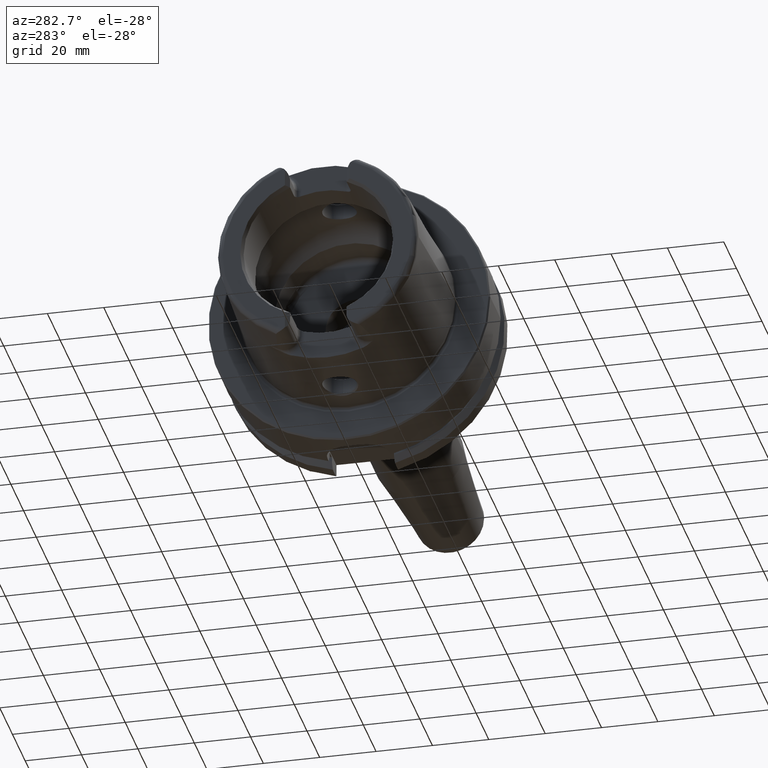
[diagram: clean part render]
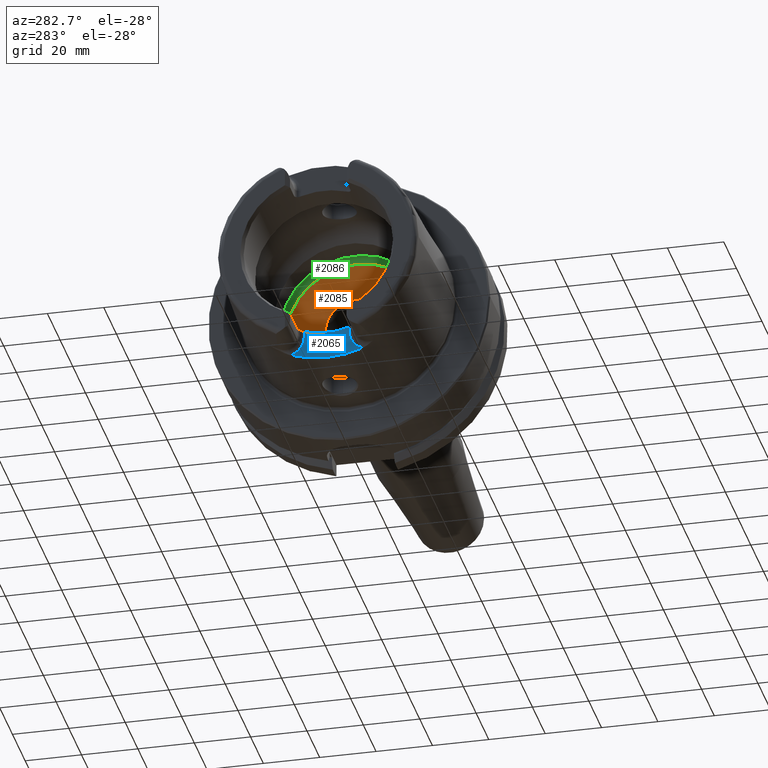
[diagram: same view with three faces highlighted in distinct colors, each labeled with its STEP entity id]
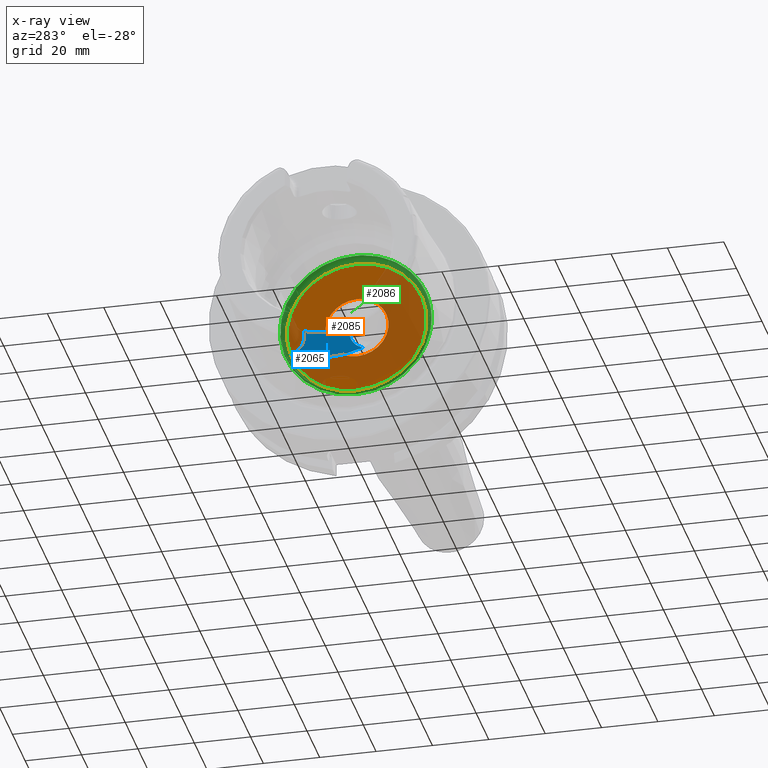
[diagram: x-ray of the same camera — body ghosted, the three highlighted faces saturated]
A machine part, auxiliary view with three faces highlighted in distinct colors.
The next image is the same camera in x-ray (body ghosted, the three faces saturated) — at least one of them is partly hidden behind the body in this view.
Their STEP definitions:

[orange] entity #2085 — the highlighted planar face has unit normal (1, 0, 0).
#96=FACE_BOUND('',#442,.T.);
#132=PLANE('',#2346);
#310=FACE_OUTER_BOUND('',#441,.T.);
#441=EDGE_LOOP('',(#1885));
#442=EDGE_LOOP('',(#1886));
#780=CIRCLE('',#2335,11.188101);
#787=CIRCLE('',#2347,24.9);
#996=VERTEX_POINT('',#4459);
#1002=VERTEX_POINT('',#4479);
#1295=EDGE_CURVE('',#996,#996,#780,.T.);
#1304=EDGE_CURVE('',#1002,#1002,#787,.T.);
#1885=ORIENTED_EDGE('',*,*,#1304,.T.);
#1886=ORIENTED_EDGE('',*,*,#1295,.T.);
#2085=ADVANCED_FACE('',(#310,#96),#132,.F.);
#2335=AXIS2_PLACEMENT_3D('',#4460,#2905,#2906);
#2346=AXIS2_PLACEMENT_3D('',#4478,#2929,#2930);
#2347=AXIS2_PLACEMENT_3D('',#4480,#2931,#2932);
#2905=DIRECTION('center_axis',(1.,0.,0.));
#2906=DIRECTION('ref_axis',(0.,0.,1.));
#2929=DIRECTION('center_axis',(1.,0.,0.));
#2930=DIRECTION('ref_axis',(0.,0.,-1.));
#2931=DIRECTION('center_axis',(-1.,0.,0.));
#2932=DIRECTION('ref_axis',(0.,0.,1.));
#4459=CARTESIAN_POINT('',(12.5,-1.37014720781873E-15,-11.188101));
#4460=CARTESIAN_POINT('Origin',(12.5,0.,0.));
#4478=CARTESIAN_POINT('Origin',(12.5,24.9,0.));
#4479=CARTESIAN_POINT('',(12.5,-3.04937052987691E-15,-24.9));
#4480=CARTESIAN_POINT('Origin',(12.5,0.,0.));

[blue] entity #2065 — the highlighted planar face has unit normal (-1, 0, 0).
#124=PLANE('',#2308);
#290=FACE_OUTER_BOUND('',#419,.T.);
#419=EDGE_LOOP('',(#1786,#1787,#1788,#1789,#1790,#1791));
#552=LINE('',#4392,#660);
#555=LINE('',#4404,#663);
#660=VECTOR('',#2834,10.);
#663=VECTOR('',#2849,10.);
#715=CIRCLE('',#2205,36.25399498998);
#766=CIRCLE('',#2302,6.88);
#769=CIRCLE('',#2309,26.5);
#770=CIRCLE('',#2310,6.88);
#886=VERTEX_POINT('',#3468);
#887=VERTEX_POINT('',#3479);
#988=VERTEX_POINT('',#4376);
#990=VERTEX_POINT('',#4381);
#992=VERTEX_POINT('',#4401);
#993=VERTEX_POINT('',#4403);
#1115=EDGE_CURVE('',#886,#887,#715,.T.);
#1269=EDGE_CURVE('',#988,#886,#766,.T.);
#1271=EDGE_CURVE('',#990,#988,#552,.T.);
#1276=EDGE_CURVE('',#992,#990,#769,.T.);
#1277=EDGE_CURVE('',#993,#992,#555,.T.);
#1278=EDGE_CURVE('',#887,#993,#770,.T.);
#1786=ORIENTED_EDGE('',*,*,#1269,.F.);
#1787=ORIENTED_EDGE('',*,*,#1271,.F.);
#1788=ORIENTED_EDGE('',*,*,#1276,.F.);
#1789=ORIENTED_EDGE('',*,*,#1277,.F.);
#1790=ORIENTED_EDGE('',*,*,#1278,.F.);
#1791=ORIENTED_EDGE('',*,*,#1115,.F.);
#2065=ADVANCED_FACE('',(#290),#124,.T.);
#2205=AXIS2_PLACEMENT_3D('',#3480,#2585,#2586);
#2302=AXIS2_PLACEMENT_3D('',#4378,#2830,#2831);
#2308=AXIS2_PLACEMENT_3D('',#4400,#2845,#2846);
#2309=AXIS2_PLACEMENT_3D('',#4402,#2847,#2848);
#2310=AXIS2_PLACEMENT_3D('',#4405,#2850,#2851);
#2585=DIRECTION('center_axis',(1.,0.,0.));
#2586=DIRECTION('ref_axis',(0.,1.,0.));
#2830=DIRECTION('center_axis',(-1.,0.,0.));
#2831=DIRECTION('ref_axis',(0.,0.510937901715381,-0.8596176246394));
#2834=DIRECTION('',(0.,0.,-1.));
#2845=DIRECTION('center_axis',(-1.,0.,0.));
#2846=DIRECTION('ref_axis',(0.,0.,1.));
#2847=DIRECTION('center_axis',(-1.,0.,0.));
#2848=DIRECTION('ref_axis',(0.,1.,0.));
#2849=DIRECTION('',(0.,0.,1.));
#2850=DIRECTION('center_axis',(-1.,0.,0.));
#2851=DIRECTION('ref_axis',(0.,-0.510937901715381,-0.8596176246394));
#3468=CARTESIAN_POINT('',(-35.,-12.7918651267415,-33.9222690767105));
#3479=CARTESIAN_POINT('',(-35.,12.7918651267415,-33.9222690767105));
#3480=CARTESIAN_POINT('Origin',(-35.,0.,0.));
#4376=CARTESIAN_POINT('',(-35.,-8.01,-27.37));
#4378=CARTESIAN_POINT('Origin',(-35.,-14.89,-27.37));
#4381=CARTESIAN_POINT('',(-35.,-8.01,-25.2604414054862));
#4392=CARTESIAN_POINT('',(-35.,-8.01,-28.685));
#4400=CARTESIAN_POINT('Origin',(-35.,8.88178419700125E-15,-30.));
#4401=CARTESIAN_POINT('',(-35.,8.01,-25.2604414054862));
#4402=CARTESIAN_POINT('Origin',(-35.,0.,0.));
#4403=CARTESIAN_POINT('',(-35.,8.01,-27.37));
#4404=CARTESIAN_POINT('',(-35.,8.01,-25.));
#4405=CARTESIAN_POINT('Origin',(-35.,14.89,-27.37));

[green] entity #2086 — the highlighted toroidal blend (fillet) surface has major radius 24.9 mm and minor (blend) radius 2 mm.
#156=TOROIDAL_SURFACE('',#2348,24.9,2.);
#311=FACE_OUTER_BOUND('',#443,.T.);
#443=EDGE_LOOP('',(#1887,#1888,#1889,#1890,#1891));
#787=CIRCLE('',#2347,24.9);
#788=CIRCLE('',#2349,2.);
#789=CIRCLE('',#2350,26.5);
#790=CIRCLE('',#2351,26.5);
#1002=VERTEX_POINT('',#4479);
#1003=VERTEX_POINT('',#4482);
#1004=VERTEX_POINT('',#4484);
#1304=EDGE_CURVE('',#1002,#1002,#787,.T.);
#1305=EDGE_CURVE('',#1002,#1003,#788,.T.);
#1306=EDGE_CURVE('',#1003,#1004,#789,.T.);
#1307=EDGE_CURVE('',#1004,#1003,#790,.T.);
#1887=ORIENTED_EDGE('',*,*,#1304,.F.);
#1888=ORIENTED_EDGE('',*,*,#1305,.T.);
#1889=ORIENTED_EDGE('',*,*,#1306,.T.);
#1890=ORIENTED_EDGE('',*,*,#1307,.T.);
#1891=ORIENTED_EDGE('',*,*,#1305,.F.);
#2086=ADVANCED_FACE('',(#311),#156,.F.);
#2347=AXIS2_PLACEMENT_3D('',#4480,#2931,#2932);
#2348=AXIS2_PLACEMENT_3D('',#4481,#2933,#2934);
#2349=AXIS2_PLACEMENT_3D('',#4483,#2935,#2936);
#2350=AXIS2_PLACEMENT_3D('',#4485,#2937,#2938);
#2351=AXIS2_PLACEMENT_3D('',#4486,#2939,#2940);
#2931=DIRECTION('center_axis',(-1.,0.,0.));
#2932=DIRECTION('ref_axis',(0.,0.,1.));
#2933=DIRECTION('center_axis',(-1.,0.,0.));
#2934=DIRECTION('ref_axis',(0.,0.,1.));
#2935=DIRECTION('center_axis',(0.,1.,-1.22464679914735E-16));
#2936=DIRECTION('ref_axis',(0.,-1.22464679914735E-16,-1.));
#2937=DIRECTION('center_axis',(-1.,0.,0.));
#2938=DIRECTION('ref_axis',(0.,0.,1.));
#2939=DIRECTION('center_axis',(-1.,0.,0.));
#2940=DIRECTION('ref_axis',(0.,0.,1.));
#4479=CARTESIAN_POINT('',(12.5,-3.04937052987691E-15,-24.9));
#4480=CARTESIAN_POINT('Origin',(12.5,0.,0.));
#4481=CARTESIAN_POINT('Origin',(10.5,0.,0.));
#4482=CARTESIAN_POINT('',(9.3,-3.24531401774049E-15,-26.5));
#4483=CARTESIAN_POINT('Origin',(10.5,-3.04937052987691E-15,-24.9));
#4484=CARTESIAN_POINT('',(9.3,-26.5,3.24531401774049E-15));
#4485=CARTESIAN_POINT('Origin',(9.3,0.,0.));
#4486=CARTESIAN_POINT('Origin',(9.3,0.,0.));